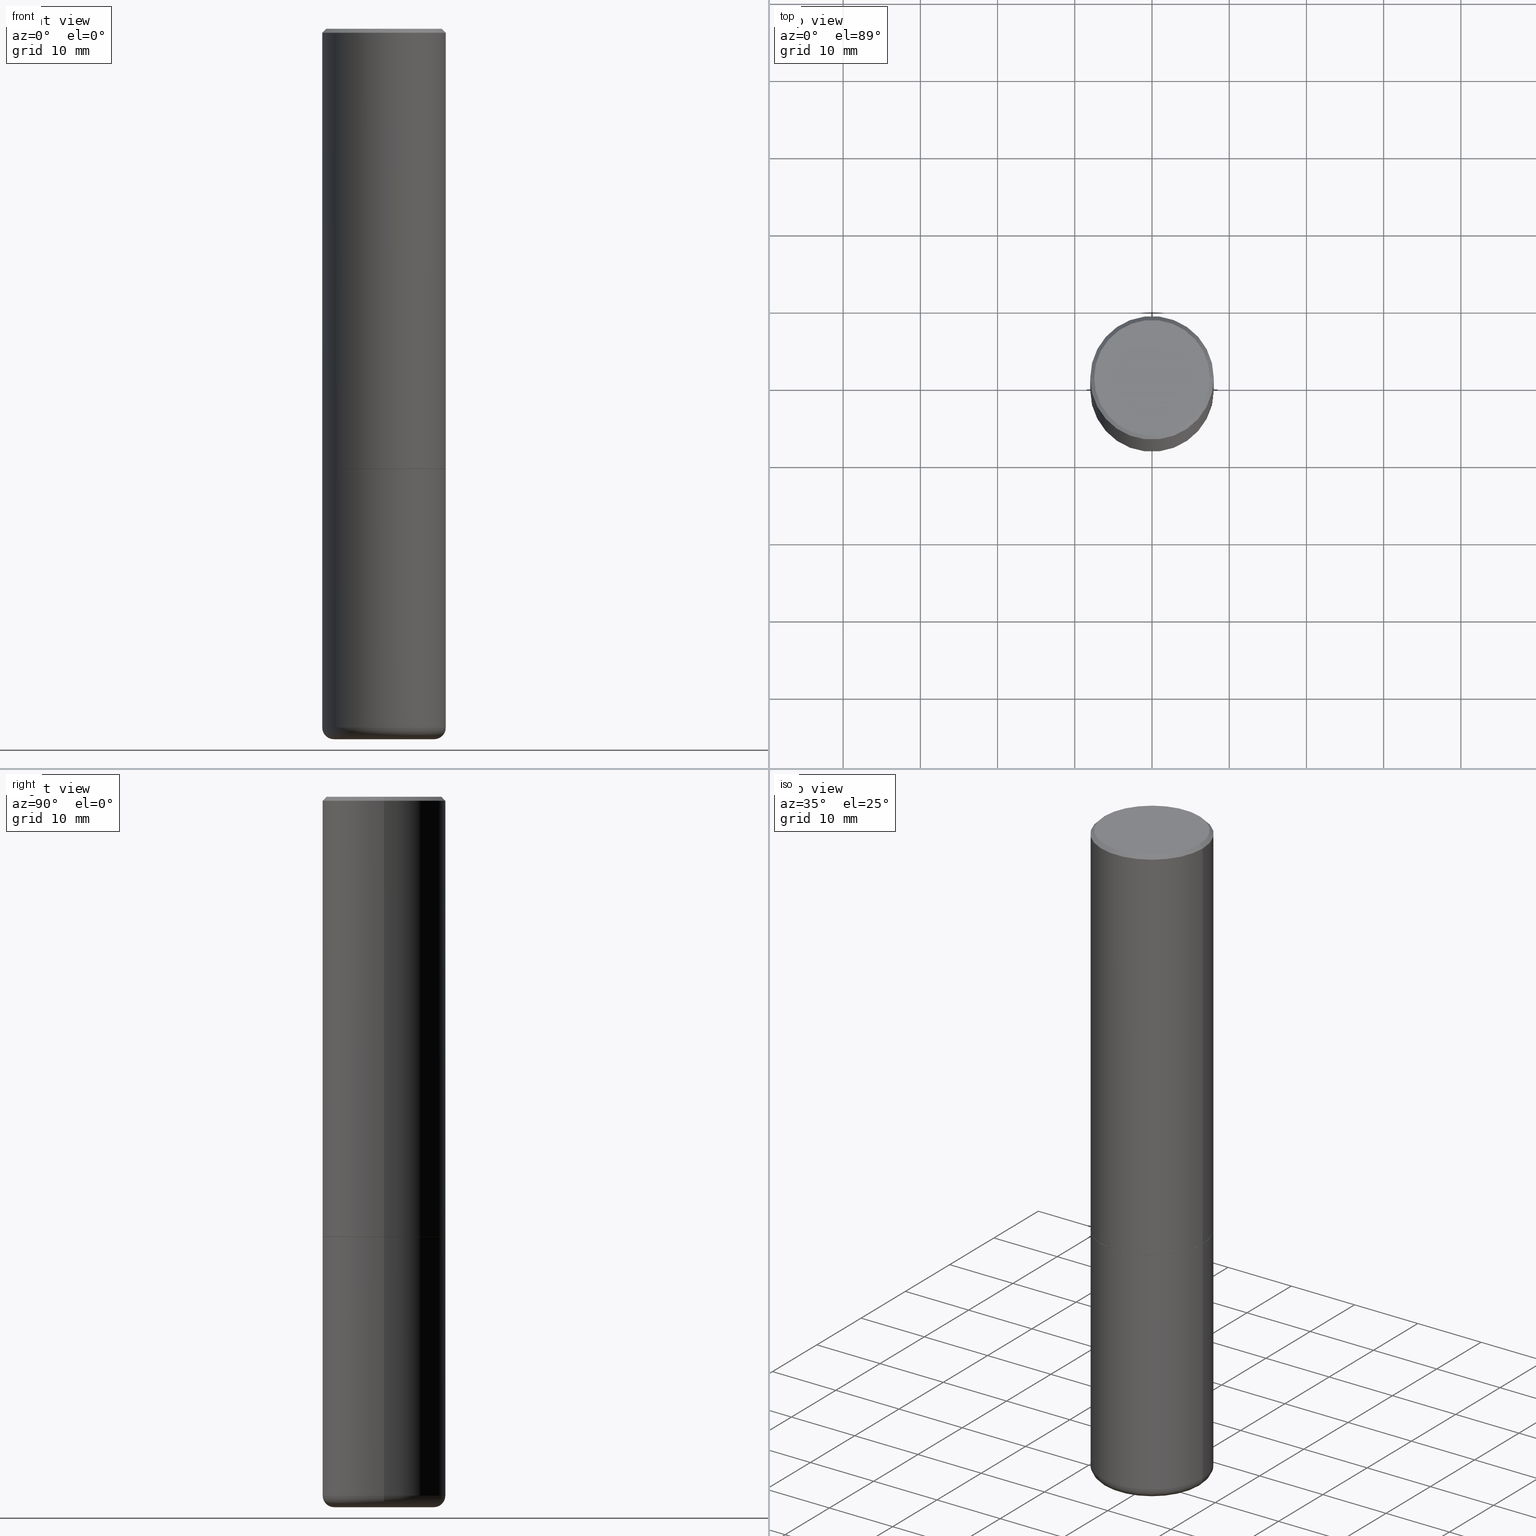
[diagram: canonical four-view strip — front | top / right | iso, engineering-drawing reading convention]
A machine part, canonical four-view strip (front | top / right | iso — engineering-drawing reading convention). The complete STEP part file that produces these views, byte-faithful:
ISO-10303-21;
HEADER;
FILE_DESCRIPTION (( 'STEP AP203' ),
    '1' );
FILE_NAME ('48017.STEP',
    '2024-03-06T19:45:35',
    ( '' ),
    ( '' ),
    'SwSTEP 2.0',
    'SolidWorks 2023',
    '' );
FILE_SCHEMA (( 'CONFIG_CONTROL_DESIGN' ));
ENDSEC;

DATA;
#1 = CARTESIAN_POINT ( 'NONE',  ( -0.3149500000000000077, 2.237854346276435590E-15, -1.549218606675782676E-29 ) ) ;
#2 = VECTOR ( 'NONE', #353, 39.37007874015748143 ) ;
#3 = AXIS2_PLACEMENT_3D ( 'NONE', #179, #329, #357 ) ;
#4 = DIRECTION ( 'NONE',  ( 1.000000000000000000, -6.982962677686267499E-15, 0.000000000000000000 ) ) ;
#5 = ORIENTED_EDGE ( 'NONE', *, *, #411, .T. ) ;
#6 = ORIENTED_EDGE ( 'NONE', *, *, #148, .F. ) ;
#7 = FACE_OUTER_BOUND ( 'NONE', #55, .T. ) ;
#8 = PERSON_AND_ORGANIZATION ( #178, #208 ) ;
#9 = EDGE_CURVE ( 'NONE', #184, #263, #37, .T. ) ;
#10 = CARTESIAN_POINT ( 'NONE',  ( 5.487632001079445967E-29, -7.834884124364017250E-15, -2.243999999999999773 ) ) ;
#11 = CARTESIAN_POINT ( 'NONE',  ( 5.487632001079445967E-29, -7.834884124364017250E-15, -2.243999999999999773 ) ) ;
#12 = CIRCLE ( 'NONE', #246, 0.3149500000000000077 ) ;
#13 = VECTOR ( 'NONE', #358, 39.37007874015748143 ) ;
#14 = CARTESIAN_POINT ( 'NONE',  ( -0.2949499999999999345, 2.094539655171995712E-15, 6.402768735149164613E-17 ) ) ;
#15 = PERSON_AND_ORGANIZATION ( #178, #208 ) ;
#16 = EDGE_CURVE ( 'NONE', #359, #370, #70, .T. ) ;
#17 = ORIENTED_EDGE ( 'NONE', *, *, #278, .F. ) ;
#18 = ORIENTED_EDGE ( 'NONE', *, *, #230, .F. ) ;
#19 = UNCERTAINTY_MEASURE_WITH_UNIT (LENGTH_MEASURE( 1.000000000000000082E-05 ), #314, 'distance_accuracy_value', 'NONE');
#20 = ORIENTED_EDGE ( 'NONE', *, *, #236, .F. ) ;
#21 = APPROVAL_PERSON_ORGANIZATION ( #244, #260, #308 ) ;
#22 = DIRECTION ( 'NONE',  ( 1.000000000000000000, -6.982962677686266711E-15, 0.000000000000000000 ) ) ;
#23 = DIRECTION ( 'NONE',  ( -2.445468806185136597E-29, 3.491481338843145583E-15, 1.000000000000000000 ) ) ;
#24 = PERSON_AND_ORGANIZATION ( #178, #208 ) ;
#25 = APPLICATION_CONTEXT ( 'configuration controlled 3d designs of mechanical parts and assemblies' ) ;
#26 = DESIGN_CONTEXT ( 'detailed design', #369, 'design' ) ;
#27 = ORIENTED_EDGE ( 'NONE', *, *, #379, .F. ) ;
#28 = PRODUCT_RELATED_PRODUCT_CATEGORY ( 'detail', '', ( #210 ) ) ;
#29 = CIRCLE ( 'NONE', #219, 0.3139500000000000068 ) ;
#30 = AXIS2_PLACEMENT_3D ( 'NONE', #338, #144, #316 ) ;
#31 = APPROVAL_ROLE ( '' ) ;
#32 = EDGE_CURVE ( 'NONE', #56, #387, #325, .T. ) ;
#33 = EDGE_CURVE ( 'NONE', #145, #263, #414, .T. ) ;
#34 = CARTESIAN_POINT ( 'NONE',  ( -0.2558500000000000218, -1.062187527272202748E-14, -3.562899999999999956 ) ) ;
#35 = DIRECTION ( 'NONE',  ( -2.445468806185136597E-29, 3.491481338843145583E-15, 1.000000000000000000 ) ) ;
#36 = AXIS2_PLACEMENT_3D ( 'NONE', #400, #215, #38 ) ;
#37 = LINE ( 'NONE', #193, #2 ) ;
#38 = DIRECTION ( 'NONE',  ( -1.000000000000000000, 6.982962677686266711E-15, 0.000000000000000000 ) ) ;
#39 = ORIENTED_EDGE ( 'NONE', *, *, #275, .T. ) ;
#40 = FACE_OUTER_BOUND ( 'NONE', #51, .T. ) ;
#41 = FACE_OUTER_BOUND ( 'NONE', #295, .T. ) ;
#42 = CARTESIAN_POINT ( 'NONE',  ( -0.3149500000000001743, 2.237854346276436774E-15, -1.549218606675783237E-29 ) ) ;
#43 = EDGE_LOOP ( 'NONE', ( #196, #242 ) ) ;
#44 = CARTESIAN_POINT ( 'NONE',  ( 0.3149500000000000077, -2.230543471175007450E-15, -0.02000000000000006981 ) ) ;
#45 = DIRECTION ( 'NONE',  ( -2.445468806185136597E-29, 3.491481338843145583E-15, 1.000000000000000000 ) ) ;
#46 = CIRCLE ( 'NONE', #248, 0.3139500000000000068 ) ;
#47 = CARTESIAN_POINT ( 'NONE',  ( -1.565777121502829671E-45, 2.235514755570671047E-31, 6.402768735150616610E-17 ) ) ;
#48 = EDGE_LOOP ( 'NONE', ( #299, #27, #168, #121 ) ) ;
#49 = EDGE_CURVE ( 'NONE', #106, #145, #261, .T. ) ;
#50 = CARTESIAN_POINT ( 'NONE',  ( -0.3139500000000000068, -5.598836751096959871E-15, -2.243999999999999773 ) ) ;
#51 = EDGE_LOOP ( 'NONE', ( #361, #292, #18, #214 ) ) ;
#52 = ORIENTED_EDGE ( 'NONE', *, *, #71, .F. ) ;
#53 = DIRECTION ( 'NONE',  ( 1.000000000000000000, -6.982962677686266711E-15, 0.000000000000000000 ) ) ;
#54 = CARTESIAN_POINT ( 'NONE',  ( 2.059624841783564063E-15, 0.2949499999999999345, -9.977985772160325786E-16 ) ) ;
#55 = EDGE_LOOP ( 'NONE', ( #347, #52 ) ) ;
#56 = VERTEX_POINT ( 'NONE', #349 ) ;
#57 = APPROVAL ( #416, 'UNSPECIFIED' ) ;
#58 = ORIENTED_EDGE ( 'NONE', *, *, #49, .F. ) ;
#59 = AXIS2_PLACEMENT_3D ( 'NONE', #77, #228, #351 ) ;
#60 = LOCAL_TIME ( 14, 45, 35.00000000000000000, #273 ) ;
#61 = AXIS2_PLACEMENT_3D ( 'NONE', #262, #390, #327 ) ;
#62 = DIRECTION ( 'NONE',  ( -1.000000000000000000, 6.982962677686265922E-15, -4.876176775795935793E-29 ) ) ;
#63 = CARTESIAN_POINT ( 'NONE',  ( 0.2949499999999999345, -2.127023677808860075E-15, 6.402768735152080933E-17 ) ) ;
#64 = ORIENTED_EDGE ( 'NONE', *, *, #236, .T. ) ;
#65 = DIRECTION ( 'NONE',  ( -1.000000000000000000, 6.982962677686265922E-15, -4.876176775795935793E-29 ) ) ;
#66 = CARTESIAN_POINT ( 'NONE',  ( -0.3149500000000000077, -1.020194451588780718E-14, -3.562899999999999956 ) ) ;
#67 = VECTOR ( 'NONE', #79, 39.37007874015748143 ) ;
#68 = CONICAL_SURFACE ( 'NONE', #36, 0.3149500000000000077, 0.7853981633974465026 ) ;
#69 = EDGE_LOOP ( 'NONE', ( #224, #212, #332, #172 ) ) ;
#70 = LINE ( 'NONE', #1, #337 ) ;
#71 = EDGE_CURVE ( 'NONE', #76, #182, #343, .T. ) ;
#72 = DIRECTION ( 'NONE',  ( -2.445468806185136597E-29, 3.491481338843145583E-15, 1.000000000000000000 ) ) ;
#73 = ADVANCED_FACE ( 'NONE', ( #41 ), #159, .T. ) ;
#74 = CARTESIAN_POINT ( 'NONE',  ( -0.3139500000000000068, -5.604135205445183851E-15, -2.243999999999999773 ) ) ;
#75 = CARTESIAN_POINT ( 'NONE',  ( 4.890937612370289799E-31, -6.982962677686315028E-17, -0.02000000000000006981 ) ) ;
#76 = VERTEX_POINT ( 'NONE', #321 ) ;
#77 = CARTESIAN_POINT ( 'NONE',  ( 0.000000000000000000, 0.000000000000000000, 0.000000000000000000 ) ) ;
#78 = EDGE_CURVE ( 'NONE', #76, #359, #138, .T. ) ;
#79 = DIRECTION ( 'NONE',  ( 0.7071067811865462405, -7.319954787623251312E-15, -0.7071067811865487940 ) ) ;
#80 = COORDINATED_UNIVERSAL_TIME_OFFSET ( 5, 0, .BEHIND. ) ;
#81 = EDGE_LOOP ( 'NONE', ( #115, #350 ) ) ;
#82 = EDGE_CURVE ( 'NONE', #286, #359, #12, .T. ) ;
#83 = VECTOR ( 'NONE', #392, 39.37007874015748143 ) ;
#84 = AXIS2_PLACEMENT_3D ( 'NONE', #47, #202, #288 ) ;
#85 = DIRECTION ( 'NONE',  ( 1.000000000000000000, -6.982962677686264344E-15, 0.000000000000000000 ) ) ;
#86 = ORIENTED_EDGE ( 'NONE', *, *, #16, .F. ) ;
#87 = DIRECTION ( 'NONE',  ( 2.438088387897960049E-29, -3.491481338843145188E-15, -1.000000000000000000 ) ) ;
#88 = CARTESIAN_POINT ( 'NONE',  ( -0.3149500000000000077, 2.129454468560426573E-15, -0.02000000000000006981 ) ) ;
#89 = ORIENTED_EDGE ( 'NONE', *, *, #78, .F. ) ;
#90 = PRODUCT_DEFINITION_SHAPE ( 'NONE', 'NONE',  #284 ) ;
#91 = CLOSED_SHELL ( 'NONE', ( #222, #221, #187, #291, #185, #128, #267, #265 ) ) ;
#92 = CARTESIAN_POINT ( 'NONE',  ( 5.487632001079445967E-29, -7.834884124364017250E-15, -2.243999999999999773 ) ) ;
#93 = CIRCLE ( 'NONE', #374, 0.3149500000000000077 ) ;
#94 = CC_DESIGN_PERSON_AND_ORGANIZATION_ASSIGNMENT ( #8, #109, ( #284 ) ) ;
#95 = DIRECTION ( 'NONE',  ( 1.000000000000000000, -6.982962677686263555E-15, 0.000000000000000000 ) ) ;
#96 = ORIENTED_EDGE ( 'NONE', *, *, #82, .T. ) ;
#97 = CARTESIAN_POINT ( 'NONE',  ( 0.3149500000000000077, -2.230543471175007450E-15, -0.02000000000000006981 ) ) ;
#98 = CONICAL_SURFACE ( 'NONE', #130, 0.3149500000000000077, 0.7853981633974465026 ) ;
#99 = APPLICATION_PROTOCOL_DEFINITION ( 'international standard', 'config_control_design', 1994, #369 ) ;
#100 = CC_DESIGN_PERSON_AND_ORGANIZATION_ASSIGNMENT ( #377, #341, ( #418 ) ) ;
#101 = AXIS2_PLACEMENT_3D ( 'NONE', #336, #303, #22 ) ;
#102 = EDGE_LOOP ( 'NONE', ( #318, #20 ) ) ;
#103 = VERTEX_POINT ( 'NONE', #63 ) ;
#104 = CARTESIAN_POINT ( 'NONE',  ( 5.485186532273261485E-29, -7.831392643025175821E-15, -2.242999999999999883 ) ) ;
#105 = DIRECTION ( 'NONE',  ( 1.000000000000000000, -6.982962677686267499E-15, 0.000000000000000000 ) ) ;
#106 = VERTEX_POINT ( 'NONE', #50 ) ;
#107 = CYLINDRICAL_SURFACE ( 'NONE', #59, 0.3149500000000001743 ) ;
#108 = DIRECTION ( 'NONE',  ( 1.000000000000000000, -6.982962677686266711E-15, 0.000000000000000000 ) ) ;
#109 = PERSON_AND_ORGANIZATION_ROLE ( 'creator' ) ;
#110 = DIRECTION ( 'NONE',  ( 1.000000000000000000, -6.982962677686269866E-15, 0.000000000000000000 ) ) ;
#111 = LINE ( 'NONE', #142, #83 ) ;
#112 = FACE_OUTER_BOUND ( 'NONE', #365, .T. ) ;
#113 = FACE_OUTER_BOUND ( 'NONE', #81, .T. ) ;
#114 = CIRCLE ( 'NONE', #240, 0.3149500000000000077 ) ;
#115 = ORIENTED_EDGE ( 'NONE', *, *, #379, .T. ) ;
#116 = VECTOR ( 'NONE', #201, 39.37007874015748143 ) ;
#117 = VERTEX_POINT ( 'NONE', #294 ) ;
#118 = CARTESIAN_POINT ( 'NONE',  ( 8.712960809557023143E-29, -1.243979886216424317E-14, -3.562899999999999956 ) ) ;
#119 = EDGE_CURVE ( 'NONE', #103, #335, #204, .T. ) ;
#120 = DATE_AND_TIME ( #245, #60 ) ;
#121 = ORIENTED_EDGE ( 'NONE', *, *, #280, .T. ) ;
#122 = CIRCLE ( 'NONE', #403, 0.3149500000000002853 ) ;
#123 = PERSON_AND_ORGANIZATION_ROLE ( 'creator' ) ;
#124 = CYLINDRICAL_SURFACE ( 'NONE', #153, 0.3149500000000001743 ) ;
#125 = FACE_OUTER_BOUND ( 'NONE', #43, .T. ) ;
#126 = DATE_AND_TIME ( #412, #389 ) ;
#127 = DIRECTION ( 'NONE',  ( 1.000000000000000000, -6.982962677686266711E-15, 4.876176775795936353E-29 ) ) ;
#128 = ADVANCED_FACE ( 'NONE', ( #137 ), #348, .T. ) ;
#129 = AXIS2_PLACEMENT_3D ( 'NONE', #92, #334, #340 ) ;
#130 = AXIS2_PLACEMENT_3D ( 'NONE', #75, #231, #354 ) ;
#131 = DIRECTION ( 'NONE',  ( -2.445468806185136877E-29, 3.491481338843145188E-15, 1.000000000000000000 ) ) ;
#132 = CARTESIAN_POINT ( 'NONE',  ( -0.3149500000000002853, -1.712756788624580222E-15, -2.242999999999999883 ) ) ;
#133 = EDGE_CURVE ( 'NONE', #387, #145, #122, .T. ) ;
#134 = EDGE_LOOP ( 'NONE', ( #96, #396, #17, #147 ) ) ;
#135 = DIRECTION ( 'NONE',  ( -2.445468806185136597E-29, 3.491481338843145583E-15, 1.000000000000000000 ) ) ;
#136 = ORIENTED_EDGE ( 'NONE', *, *, #71, .T. ) ;
#137 = FACE_OUTER_BOUND ( 'NONE', #322, .T. ) ;
#138 = CIRCLE ( 'NONE', #373, 0.05909999999999999282 ) ;
#139 = CARTESIAN_POINT ( 'NONE',  ( 0.3149500000000002853, -1.003067673836246727E-14, -2.242999999999999883 ) ) ;
#140 = CIRCLE ( 'NONE', #395, 0.3149500000000000077 ) ;
#141 =( NAMED_UNIT ( * ) SI_UNIT ( $, .STERADIAN. ) SOLID_ANGLE_UNIT ( ) );
#142 = CARTESIAN_POINT ( 'NONE',  ( 0.3149500000000001743, -2.199284095337290660E-15, 1.535751875536930690E-29 ) ) ;
#143 = EDGE_CURVE ( 'NONE', #370, #117, #258, .T. ) ;
#144 = DIRECTION ( 'NONE',  ( 0.000000000000000000, 0.000000000000000000, 1.000000000000000000 ) ) ;
#145 = VERTEX_POINT ( 'NONE', #132 ) ;
#146 = DATE_AND_TIME ( #249, #408 ) ;
#147 = ORIENTED_EDGE ( 'NONE', *, *, #181, .F. ) ;
#148 = EDGE_CURVE ( 'NONE', #182, #286, #344, .T. ) ;
#149 = DIRECTION ( 'NONE',  ( -2.445468806185136597E-29, 3.491481338843145583E-15, 1.000000000000000000 ) ) ;
#150 = PERSON_AND_ORGANIZATION_ROLE ( 'classification_officer' ) ;
#151 = EDGE_LOOP ( 'NONE', ( #161, #227, #5, #355 ) ) ;
#152 = APPROVAL_STATUS ( 'not_yet_approved' ) ;
#153 = AXIS2_PLACEMENT_3D ( 'NONE', #380, #407, #289 ) ;
#154 = CC_DESIGN_SECURITY_CLASSIFICATION ( #402, ( #418 ) ) ;
#155 = CIRCLE ( 'NONE', #3, 0.2949499999999999345 ) ;
#156 = SECURITY_CLASSIFICATION_LEVEL ( 'unclassified' ) ;
#157 = CARTESIAN_POINT ( 'NONE',  ( 8.857488016002564476E-29, -1.264614540928987199E-14, -3.621999999999999886 ) ) ;
#158 = MECHANICAL_CONTEXT ( 'NONE', #25, 'mechanical' ) ;
#159 = TOROIDAL_SURFACE ( 'NONE', #218, 0.2558500000000000218, 0.05909999999999995812 ) ;
#160 = DIRECTION ( 'NONE',  ( -2.445468806185136597E-29, 3.491481338843145583E-15, 1.000000000000000000 ) ) ;
#161 = ORIENTED_EDGE ( 'NONE', *, *, #33, .F. ) ;
#162 = EDGE_CURVE ( 'NONE', #359, #286, #140, .T. ) ;
#163 = DIRECTION ( 'NONE',  ( 7.105427357601001859E-15, 1.000000000000000000, -3.491481338843145583E-15 ) ) ;
#164 = APPROVAL_PERSON_ORGANIZATION ( #250, #277, #31 ) ;
#165 = DIRECTION ( 'NONE',  ( -2.445468806185136597E-29, 3.491481338843145583E-15, 1.000000000000000000 ) ) ;
#166 = AXIS2_PLACEMENT_3D ( 'NONE', #198, #324, #95 ) ;
#167 = AXIS2_PLACEMENT_3D ( 'NONE', #233, #268, #108 ) ;
#168 = ORIENTED_EDGE ( 'NONE', *, *, #9, .T. ) ;
#169 = APPROVAL_DATE_TIME ( #126, #57 ) ;
#170 = DIRECTION ( 'NONE',  ( -2.445468806185136597E-29, 3.491481338843145583E-15, 1.000000000000000000 ) ) ;
#171 = COORDINATED_UNIVERSAL_TIME_OFFSET ( 5, 0, .BEHIND. ) ;
#172 = ORIENTED_EDGE ( 'NONE', *, *, #9, .F. ) ;
#173 = PLANE ( 'NONE',  #312 ) ;
#174 = ORIENTED_EDGE ( 'NONE', *, *, #162, .T. ) ;
#175 = FACE_OUTER_BOUND ( 'NONE', #151, .T. ) ;
#176 = AXIS2_PLACEMENT_3D ( 'NONE', #10, #165, #296 ) ;
#177 = ORIENTED_EDGE ( 'NONE', *, *, #181, .T. ) ;
#178 = PERSON ( 'UNSPECIFIED', 'UNSPECIFIED', 'UNSPECIFIED', ('UNSPECIFIED'), ('UNSPECIFIED'), ('UNSPECIFIED') ) ;
#179 = CARTESIAN_POINT ( 'NONE',  ( -1.565777121502829671E-45, 2.235514755570671047E-31, 6.402768735150616610E-17 ) ) ;
#180 = DIRECTION ( 'NONE',  ( -2.445468806185136597E-29, 3.491481338843145583E-15, 1.000000000000000000 ) ) ;
#181 = EDGE_CURVE ( 'NONE', #286, #117, #235, .T. ) ;
#182 = VERTEX_POINT ( 'NONE', #385 ) ;
#183 = FACE_OUTER_BOUND ( 'NONE', #48, .T. ) ;
#184 = VERTEX_POINT ( 'NONE', #14 ) ;
#185 = ADVANCED_FACE ( 'NONE', ( #175 ), #107, .T. ) ;
#186 = ORIENTED_EDGE ( 'NONE', *, *, #32, .T. ) ;
#187 = ADVANCED_FACE ( 'NONE', ( #328 ), #98, .T. ) ;
#188 = CC_DESIGN_APPROVAL ( #57, ( #284 ) ) ;
#189 = AXIS2_PLACEMENT_3D ( 'NONE', #266, #304, #239 ) ;
#190 = DIRECTION ( 'NONE',  ( 2.438088387897960049E-29, -3.491481338843145188E-15, -1.000000000000000000 ) ) ;
#191 = CARTESIAN_POINT ( 'NONE',  ( 5.485186532273261485E-29, -7.831392643025175821E-15, -2.242999999999999883 ) ) ;
#192 = CC_DESIGN_DATE_AND_TIME_ASSIGNMENT ( #120, #399, ( #402 ) ) ;
#193 = CARTESIAN_POINT ( 'NONE',  ( -0.3149500000000000077, 2.129454468560426573E-15, -0.02000000000000006981 ) ) ;
#194 = AXIS2_PLACEMENT_3D ( 'NONE', #54, #87, #305 ) ;
#195 = CARTESIAN_POINT ( 'NONE',  ( 8.712960809557023143E-29, -1.243979886216424317E-14, -3.562899999999999956 ) ) ;
#196 = ORIENTED_EDGE ( 'NONE', *, *, #278, .T. ) ;
#197 = PERSON_AND_ORGANIZATION ( #178, #208 ) ;
#198 = CARTESIAN_POINT ( 'NONE',  ( 8.857488016002564476E-29, -1.264614540928987199E-14, -3.621999999999999886 ) ) ;
#199 = PERSON_AND_ORGANIZATION_ROLE ( 'design_owner' ) ;
#200 = CARTESIAN_POINT ( 'NONE',  ( 8.712960809557023143E-29, -1.243979886216424317E-14, -3.562899999999999956 ) ) ;
#201 = DIRECTION ( 'NONE',  ( -0.7071067811866199593, 7.493145998870616062E-15, 0.7071067811864750752 ) ) ;
#202 = DIRECTION ( 'NONE',  ( -2.445468806185136597E-29, 3.491481338843145583E-15, 1.000000000000000000 ) ) ;
#203 = APPROVAL_ROLE ( '' ) ;
#204 = LINE ( 'NONE', #44, #67 ) ;
#205 = FACE_OUTER_BOUND ( 'NONE', #302, .T. ) ;
#206 = EDGE_CURVE ( 'NONE', #103, #184, #287, .T. ) ;
#207 = ADVANCED_FACE ( 'NONE', ( #7 ), #173, .T. ) ;
#208 = ORGANIZATION ( 'UNSPECIFIED', 'UNSPECIFIED', '' ) ;
#209 = PLANE ( 'NONE',  #194 ) ;
#210 = PRODUCT ( '48017', '48017', '', ( #158 ) ) ;
#211 = FACE_OUTER_BOUND ( 'NONE', #102, .T. ) ;
#212 = ORIENTED_EDGE ( 'NONE', *, *, #119, .T. ) ;
#213 = PLANE ( 'NONE',  #129 ) ;
#214 = ORIENTED_EDGE ( 'NONE', *, *, #411, .F. ) ;
#215 = DIRECTION ( 'NONE',  ( 2.445468806185136597E-29, -3.491481338843145583E-15, -1.000000000000000000 ) ) ;
#216 = COORDINATED_UNIVERSAL_TIME_OFFSET ( 5, 0, .BEHIND. ) ;
#217 = LOCAL_TIME ( 14, 45, 35.00000000000000000, #216 ) ;
#218 = AXIS2_PLACEMENT_3D ( 'NONE', #200, #45, #220 ) ;
#219 = AXIS2_PLACEMENT_3D ( 'NONE', #371, #180, #363 ) ;
#220 = DIRECTION ( 'NONE',  ( 1.000000000000000000, -6.982962677686269866E-15, 4.883557194083113462E-29 ) ) ;
#221 = ADVANCED_FACE ( 'NONE', ( #40 ), #124, .T. ) ;
#222 = ADVANCED_FACE ( 'NONE', ( #205 ), #320, .T. ) ;
#223 = ORIENTED_EDGE ( 'NONE', *, *, #148, .T. ) ;
#224 = ORIENTED_EDGE ( 'NONE', *, *, #206, .F. ) ;
#225 = CLOSED_SHELL ( 'NONE', ( #323, #283, #293, #366, #73, #207 ) ) ;
#226 = CIRCLE ( 'NONE', #342, 0.2558500000000000218 ) ;
#227 = ORIENTED_EDGE ( 'NONE', *, *, #315, .T. ) ;
#228 = DIRECTION ( 'NONE',  ( -2.445468806185136597E-29, 3.491481338843145583E-15, 1.000000000000000000 ) ) ;
#229 = DIRECTION ( 'NONE',  ( 0.7071067811866199593, -2.468850131083015945E-15, 0.7071067811864750752 ) ) ;
#230 = EDGE_CURVE ( 'NONE', #335, #263, #93, .T. ) ;
#231 = DIRECTION ( 'NONE',  ( 2.445468806185136597E-29, -3.491481338843145583E-15, -1.000000000000000000 ) ) ;
#232 = DIRECTION ( 'NONE',  ( 2.438088387897960049E-29, -3.491481338843145188E-15, -1.000000000000000000 ) ) ;
#233 = CARTESIAN_POINT ( 'NONE',  ( 5.487632001079445967E-29, -7.834884124364017250E-15, -2.243999999999999773 ) ) ;
#234 = CARTESIAN_POINT ( 'NONE',  ( -0.3149500000000000077, -7.899487146987694225E-15, -2.243999999999999773 ) ) ;
#235 = LINE ( 'NONE', #264, #13 ) ;
#236 = EDGE_CURVE ( 'NONE', #106, #56, #29, .T. ) ;
#237 = CARTESIAN_POINT ( 'NONE',  ( 5.487632001079445967E-29, -7.834884124364017250E-15, -2.243999999999999773 ) ) ;
#238 = CC_DESIGN_APPROVAL ( #277, ( #418 ) ) ;
#239 = DIRECTION ( 'NONE',  ( 1.000000000000000000, -6.982962677686266711E-15, 4.876176775795936353E-29 ) ) ;
#240 = AXIS2_PLACEMENT_3D ( 'NONE', #307, #149, #272 ) ;
#241 = ORIENTED_EDGE ( 'NONE', *, *, #133, .F. ) ;
#242 = ORIENTED_EDGE ( 'NONE', *, *, #143, .T. ) ;
#243 = DIRECTION ( 'NONE',  ( -2.445468806185136597E-29, 3.491481338843145583E-15, 1.000000000000000000 ) ) ;
#244 = PERSON_AND_ORGANIZATION ( #178, #208 ) ;
#245 = CALENDAR_DATE ( 2024, 6, 3 ) ;
#246 = AXIS2_PLACEMENT_3D ( 'NONE', #195, #255, #345 ) ;
#247 = EDGE_LOOP ( 'NONE', ( #346, #281, #415, #6 ) ) ;
#248 = AXIS2_PLACEMENT_3D ( 'NONE', #237, #23, #85 ) ;
#249 = CALENDAR_DATE ( 2024, 6, 3 ) ;
#250 = PERSON_AND_ORGANIZATION ( #178, #208 ) ;
#251 = CALENDAR_DATE ( 2024, 6, 3 ) ;
#252 = CALENDAR_DATE ( 2024, 6, 3 ) ;
#253 = CYLINDRICAL_SURFACE ( 'NONE', #313, 0.3149500000000000077 ) ;
#254 = CARTESIAN_POINT ( 'NONE',  ( 8.857488016002564476E-29, -1.264614540928987199E-14, -3.621999999999999886 ) ) ;
#255 = DIRECTION ( 'NONE',  ( -2.445468806185136597E-29, 3.491481338843145583E-15, 1.000000000000000000 ) ) ;
#256 = DIRECTION ( 'NONE',  ( -2.445468806185136877E-29, 3.491481338843145188E-15, 1.000000000000000000 ) ) ;
#257 = ORIENTED_EDGE ( 'NONE', *, *, #315, .F. ) ;
#258 = CIRCLE ( 'NONE', #167, 0.3149500000000000077 ) ;
#259 = LOCAL_TIME ( 14, 45, 35.00000000000000000, #80 ) ;
#260 = APPROVAL ( #310, 'UNSPECIFIED' ) ;
#261 = LINE ( 'NONE', #74, #116 ) ;
#262 = CARTESIAN_POINT ( 'NONE',  ( 0.2558500000000000218, -1.422638986325027382E-14, -3.562899999999999956 ) ) ;
#263 = VERTEX_POINT ( 'NONE', #88 ) ;
#264 = CARTESIAN_POINT ( 'NONE',  ( 0.3149500000000000077, -2.199284095337289871E-15, 1.535751875536930130E-29 ) ) ;
#265 = ADVANCED_FACE ( 'NONE', ( #113 ), #209, .F. ) ;
#266 = CARTESIAN_POINT ( 'NONE',  ( 0.000000000000000000, 0.000000000000000000, 0.000000000000000000 ) ) ;
#267 = ADVANCED_FACE ( 'NONE', ( #211 ), #213, .F. ) ;
#268 = DIRECTION ( 'NONE',  ( -2.445468806185136597E-29, 3.491481338843145583E-15, 1.000000000000000000 ) ) ;
#269 = CIRCLE ( 'NONE', #404, 0.3149500000000002853 ) ;
#270 = ADVANCED_BREP_SHAPE_REPRESENTATION ( '48017', ( #290, #300, #30 ), #279 ) ;
#271 = FACE_OUTER_BOUND ( 'NONE', #247, .T. ) ;
#272 = DIRECTION ( 'NONE',  ( 1.000000000000000000, -6.982962677686266711E-15, 0.000000000000000000 ) ) ;
#273 = COORDINATED_UNIVERSAL_TIME_OFFSET ( 5, 0, .BEHIND. ) ;
#274 = APPLICATION_PROTOCOL_DEFINITION ( 'international standard', 'config_control_design', 1994, #25 ) ;
#275 = EDGE_CURVE ( 'NONE', #56, #106, #46, .T. ) ;
#276 = SHAPE_DEFINITION_REPRESENTATION ( #90, #270 ) ;
#277 = APPROVAL ( #152, 'UNSPECIFIED' ) ;
#278 = EDGE_CURVE ( 'NONE', #117, #370, #384, .T. ) ;
#279 =( GEOMETRIC_REPRESENTATION_CONTEXT ( 3 ) GLOBAL_UNCERTAINTY_ASSIGNED_CONTEXT ( ( #19 ) ) GLOBAL_UNIT_ASSIGNED_CONTEXT ( ( #314, #285, #141 ) ) REPRESENTATION_CONTEXT ( 'NONE', 'WORKASPACE' ) );
#280 = EDGE_CURVE ( 'NONE', #263, #335, #114, .T. ) ;
#281 = ORIENTED_EDGE ( 'NONE', *, *, #78, .T. ) ;
#282 = CARTESIAN_POINT ( 'NONE',  ( 0.3139500000000000068, -1.002718525702362111E-14, -2.243999999999999773 ) ) ;
#283 = ADVANCED_FACE ( 'NONE', ( #271 ), #360, .T. ) ;
#284 = PRODUCT_DEFINITION ( 'UNKNOWN', '', #418, #26 ) ;
#285 =( NAMED_UNIT ( * ) PLANE_ANGLE_UNIT ( ) SI_UNIT ( $, .RADIAN. ) );
#286 = VERTEX_POINT ( 'NONE', #397 ) ;
#287 = CIRCLE ( 'NONE', #84, 0.2949499999999999345 ) ;
#288 = DIRECTION ( 'NONE',  ( 1.000000000000000000, -6.982962677686267499E-15, 4.876696176320539145E-29 ) ) ;
#289 = DIRECTION ( 'NONE',  ( 1.000000000000000000, -6.982962677686265922E-15, 4.876176775795935232E-29 ) ) ;
#290 = MANIFOLD_SOLID_BREP ( 'Body-Move/Copy2[1]', #225 ) ;
#291 = ADVANCED_FACE ( 'NONE', ( #183 ), #68, .T. ) ;
#292 = ORIENTED_EDGE ( 'NONE', *, *, #33, .T. ) ;
#293 = ADVANCED_FACE ( 'NONE', ( #125 ), #386, .F. ) ;
#294 = CARTESIAN_POINT ( 'NONE',  ( 0.3149500000000000077, -1.003416821970130712E-14, -2.243999999999999773 ) ) ;
#295 = EDGE_LOOP ( 'NONE', ( #89, #136, #223, #410 ) ) ;
#296 = DIRECTION ( 'NONE',  ( 1.000000000000000000, -6.982962677686264344E-15, 0.000000000000000000 ) ) ;
#297 = DIRECTION ( 'NONE',  ( 1.000000000000000000, -6.982962677686264344E-15, 0.000000000000000000 ) ) ;
#298 = AXIS2_PLACEMENT_3D ( 'NONE', #382, #232, #62 ) ;
#299 = ORIENTED_EDGE ( 'NONE', *, *, #119, .F. ) ;
#300 = MANIFOLD_SOLID_BREP ( 'Body-Move/Copy2[2]', #91 ) ;
#301 =( LENGTH_UNIT ( ) NAMED_UNIT ( * ) SI_UNIT ( $, .METRE. ) );
#302 = EDGE_LOOP ( 'NONE', ( #39, #388, #241, #383 ) ) ;
#303 = DIRECTION ( 'NONE',  ( -2.445468806185136597E-29, 3.491481338843145583E-15, 1.000000000000000000 ) ) ;
#304 = DIRECTION ( 'NONE',  ( -2.445468806185136597E-29, 3.491481338843145583E-15, 1.000000000000000000 ) ) ;
#305 = DIRECTION ( 'NONE',  ( -1.000000000000000000, 6.982962677686265922E-15, -4.876176775795935793E-29 ) ) ;
#306 = VECTOR ( 'NONE', #229, 39.37007874015748143 ) ;
#307 = CARTESIAN_POINT ( 'NONE',  ( 4.890937612370289799E-31, -6.982962677686315028E-17, -0.02000000000000006981 ) ) ;
#308 = APPROVAL_ROLE ( '' ) ;
#309 = DATE_AND_TIME ( #252, #259 ) ;
#310 = APPROVAL_STATUS ( 'not_yet_approved' ) ;
#311 = PERSON_AND_ORGANIZATION ( #178, #208 ) ;
#312 = AXIS2_PLACEMENT_3D ( 'NONE', #157, #190, #65 ) ;
#313 = AXIS2_PLACEMENT_3D ( 'NONE', #317, #35, #127 ) ;
#314 =( CONVERSION_BASED_UNIT ( 'INCH', #405 ) LENGTH_UNIT ( ) NAMED_UNIT ( #364 ) );
#315 = EDGE_CURVE ( 'NONE', #145, #387, #269, .T. ) ;
#316 = DIRECTION ( 'NONE',  ( 1.000000000000000000, 0.000000000000000000, 0.000000000000000000 ) ) ;
#317 = CARTESIAN_POINT ( 'NONE',  ( 0.000000000000000000, 0.000000000000000000, 0.000000000000000000 ) ) ;
#318 = ORIENTED_EDGE ( 'NONE', *, *, #275, .F. ) ;
#319 = VECTOR ( 'NONE', #131, 39.37007874015748143 ) ;
#320 = CONICAL_SURFACE ( 'NONE', #331, 0.3139500000000000068, 0.7853981633975507526 ) ;
#321 = CARTESIAN_POINT ( 'NONE',  ( -0.2558500000000000218, -1.051508316786773174E-14, -3.621999999999999886 ) ) ;
#322 = EDGE_LOOP ( 'NONE', ( #58, #64, #186, #257 ) ) ;
#323 = ADVANCED_FACE ( 'NONE', ( #409 ), #253, .T. ) ;
#324 = DIRECTION ( 'NONE',  ( -2.445468806185136597E-29, 3.491481338843145583E-15, 1.000000000000000000 ) ) ;
#325 = LINE ( 'NONE', #282, #306 ) ;
#326 = EDGE_CURVE ( 'NONE', #182, #76, #226, .T. ) ;
#327 = DIRECTION ( 'NONE',  ( 1.000000000000000000, -6.982962677686262766E-15, 0.000000000000000000 ) ) ;
#328 = FACE_OUTER_BOUND ( 'NONE', #69, .T. ) ;
#329 = DIRECTION ( 'NONE',  ( -2.445468806185136597E-29, 3.491481338843145583E-15, 1.000000000000000000 ) ) ;
#330 = AXIS2_PLACEMENT_3D ( 'NONE', #118, #243, #367 ) ;
#331 = AXIS2_PLACEMENT_3D ( 'NONE', #11, #391, #297 ) ;
#332 = ORIENTED_EDGE ( 'NONE', *, *, #230, .T. ) ;
#333 = CC_DESIGN_PERSON_AND_ORGANIZATION_ASSIGNMENT ( #24, #150, ( #402 ) ) ;
#334 = DIRECTION ( 'NONE',  ( -2.438088387897960049E-29, 3.491481338843145188E-15, 1.000000000000000000 ) ) ;
#335 = VERTEX_POINT ( 'NONE', #97 ) ;
#336 = CARTESIAN_POINT ( 'NONE',  ( 5.487632001079445967E-29, -7.834884124364017250E-15, -2.243999999999999773 ) ) ;
#337 = VECTOR ( 'NONE', #256, 39.37007874015748143 ) ;
#338 = CARTESIAN_POINT ( 'NONE',  ( 0.000000000000000000, 0.000000000000000000, 0.000000000000000000 ) ) ;
#339 = CC_DESIGN_PERSON_AND_ORGANIZATION_ASSIGNMENT ( #311, #123, ( #418 ) ) ;
#340 = DIRECTION ( 'NONE',  ( 1.000000000000000000, -6.982962677686265922E-15, 4.876176775795935793E-29 ) ) ;
#341 = PERSON_AND_ORGANIZATION_ROLE ( 'design_supplier' ) ;
#342 = AXIS2_PLACEMENT_3D ( 'NONE', #254, #160, #381 ) ;
#343 = CIRCLE ( 'NONE', #166, 0.2558500000000000218 ) ;
#344 = CIRCLE ( 'NONE', #61, 0.05909999999999999282 ) ;
#345 = DIRECTION ( 'NONE',  ( 1.000000000000000000, -6.982962677686269866E-15, 0.000000000000000000 ) ) ;
#346 = ORIENTED_EDGE ( 'NONE', *, *, #326, .T. ) ;
#347 = ORIENTED_EDGE ( 'NONE', *, *, #326, .F. ) ;
#348 = CONICAL_SURFACE ( 'NONE', #176, 0.3139500000000000068, 0.7853981633975507526 ) ;
#349 = CARTESIAN_POINT ( 'NONE',  ( 0.3139500000000000068, -1.002718525702362111E-14, -2.243999999999999773 ) ) ;
#350 = ORIENTED_EDGE ( 'NONE', *, *, #206, .T. ) ;
#351 = DIRECTION ( 'NONE',  ( 1.000000000000000000, -6.982962677686265922E-15, 4.876176775795935232E-29 ) ) ;
#352 = CARTESIAN_POINT ( 'NONE',  ( 4.890937612370289799E-31, -6.982962677686315028E-17, -0.02000000000000006981 ) ) ;
#353 = DIRECTION ( 'NONE',  ( -0.7071067811865462405, 2.468850131082243256E-15, -0.7071067811865487940 ) ) ;
#354 = DIRECTION ( 'NONE',  ( -1.000000000000000000, 6.982962677686266711E-15, 0.000000000000000000 ) ) ;
#355 = ORIENTED_EDGE ( 'NONE', *, *, #280, .F. ) ;
#356 = CARTESIAN_POINT ( 'NONE',  ( 8.712960809557023143E-29, -1.243979886216424317E-14, -3.562899999999999956 ) ) ;
#357 = DIRECTION ( 'NONE',  ( 1.000000000000000000, -6.982962677686267499E-15, 4.876696176320539145E-29 ) ) ;
#358 = DIRECTION ( 'NONE',  ( -2.445468806185136877E-29, 3.491481338843145188E-15, 1.000000000000000000 ) ) ;
#359 = VERTEX_POINT ( 'NONE', #66 ) ;
#360 = TOROIDAL_SURFACE ( 'NONE', #330, 0.2558500000000000218, 0.05909999999999995812 ) ;
#361 = ORIENTED_EDGE ( 'NONE', *, *, #133, .T. ) ;
#362 = APPROVAL_DATE_TIME ( #146, #260 ) ;
#363 = DIRECTION ( 'NONE',  ( 1.000000000000000000, -6.982962677686264344E-15, 0.000000000000000000 ) ) ;
#364 = DIMENSIONAL_EXPONENTS ( 1.000000000000000000, 0.000000000000000000, 0.000000000000000000, 0.000000000000000000, 0.000000000000000000, 0.000000000000000000, 0.000000000000000000 ) ;
#365 = EDGE_LOOP ( 'NONE', ( #86, #174, #177, #378 ) ) ;
#366 = ADVANCED_FACE ( 'NONE', ( #112 ), #393, .T. ) ;
#367 = DIRECTION ( 'NONE',  ( 1.000000000000000000, -6.982962677686269866E-15, 4.883557194083113462E-29 ) ) ;
#368 = DATE_AND_TIME ( #251, #217 ) ;
#369 = APPLICATION_CONTEXT ( 'configuration controlled 3d designs of mechanical parts and assemblies' ) ;
#370 = VERTEX_POINT ( 'NONE', #234 ) ;
#371 = CARTESIAN_POINT ( 'NONE',  ( 5.487632001079445967E-29, -7.834884124364017250E-15, -2.243999999999999773 ) ) ;
#372 = CC_DESIGN_APPROVAL ( #260, ( #402 ) ) ;
#373 = AXIS2_PLACEMENT_3D ( 'NONE', #34, #163, #413 ) ;
#374 = AXIS2_PLACEMENT_3D ( 'NONE', #352, #72, #53 ) ;
#375 = COORDINATED_UNIVERSAL_TIME_OFFSET ( 5, 0, .BEHIND. ) ;
#376 = CC_DESIGN_PERSON_AND_ORGANIZATION_ASSIGNMENT ( #15, #199, ( #210 ) ) ;
#377 = PERSON_AND_ORGANIZATION ( #178, #208 ) ;
#378 = ORIENTED_EDGE ( 'NONE', *, *, #143, .F. ) ;
#379 = EDGE_CURVE ( 'NONE', #184, #103, #155, .T. ) ;
#380 = CARTESIAN_POINT ( 'NONE',  ( 0.000000000000000000, 0.000000000000000000, 0.000000000000000000 ) ) ;
#381 = DIRECTION ( 'NONE',  ( 1.000000000000000000, -6.982962677686263555E-15, 0.000000000000000000 ) ) ;
#382 = CARTESIAN_POINT ( 'NONE',  ( 5.487632001079445967E-29, -7.834884124364017250E-15, -2.243999999999999773 ) ) ;
#383 = ORIENTED_EDGE ( 'NONE', *, *, #32, .F. ) ;
#384 = CIRCLE ( 'NONE', #101, 0.3149500000000000077 ) ;
#385 = CARTESIAN_POINT ( 'NONE',  ( 0.2558500000000000218, -1.443273641037590422E-14, -3.621999999999999886 ) ) ;
#386 = PLANE ( 'NONE',  #298 ) ;
#387 = VERTEX_POINT ( 'NONE', #139 ) ;
#388 = ORIENTED_EDGE ( 'NONE', *, *, #49, .T. ) ;
#389 = LOCAL_TIME ( 14, 45, 35.00000000000000000, #171 ) ;
#390 = DIRECTION ( 'NONE',  ( -6.982962677686266711E-15, -1.000000000000000000, 3.491481338843145583E-15 ) ) ;
#391 = DIRECTION ( 'NONE',  ( -2.445468806185136597E-29, 3.491481338843145583E-15, 1.000000000000000000 ) ) ;
#392 = DIRECTION ( 'NONE',  ( -2.445468806185136877E-29, 3.491481338843145188E-15, 1.000000000000000000 ) ) ;
#393 = CYLINDRICAL_SURFACE ( 'NONE', #189, 0.3149500000000000077 ) ;
#394 = APPROVAL_PERSON_ORGANIZATION ( #197, #57, #203 ) ;
#395 = AXIS2_PLACEMENT_3D ( 'NONE', #356, #170, #110 ) ;
#396 = ORIENTED_EDGE ( 'NONE', *, *, #16, .T. ) ;
#397 = CARTESIAN_POINT ( 'NONE',  ( 0.3149500000000000077, -1.463908295750153462E-14, -3.562899999999999956 ) ) ;
#398 = DATE_TIME_ROLE ( 'creation_date' ) ;
#399 = DATE_TIME_ROLE ( 'classification_date' ) ;
#400 = CARTESIAN_POINT ( 'NONE',  ( 4.890937612370289799E-31, -6.982962677686315028E-17, -0.02000000000000006981 ) ) ;
#401 = APPROVAL_DATE_TIME ( #368, #277 ) ;
#402 = SECURITY_CLASSIFICATION ( '', '', #156 ) ;
#403 = AXIS2_PLACEMENT_3D ( 'NONE', #104, #135, #4 ) ;
#404 = AXIS2_PLACEMENT_3D ( 'NONE', #191, #417, #105 ) ;
#405 = LENGTH_MEASURE_WITH_UNIT ( LENGTH_MEASURE( 0.02539999999999999897 ), #301 );
#406 = CC_DESIGN_DATE_AND_TIME_ASSIGNMENT ( #309, #398, ( #284 ) ) ;
#407 = DIRECTION ( 'NONE',  ( -2.445468806185136597E-29, 3.491481338843145583E-15, 1.000000000000000000 ) ) ;
#408 = LOCAL_TIME ( 14, 45, 35.00000000000000000, #375 ) ;
#409 = FACE_OUTER_BOUND ( 'NONE', #134, .T. ) ;
#410 = ORIENTED_EDGE ( 'NONE', *, *, #162, .F. ) ;
#411 = EDGE_CURVE ( 'NONE', #387, #335, #111, .T. ) ;
#412 = CALENDAR_DATE ( 2024, 6, 3 ) ;
#413 = DIRECTION ( 'NONE',  ( -1.000000000000000000, 7.105427357600993181E-15, 0.000000000000000000 ) ) ;
#414 = LINE ( 'NONE', #42, #319 ) ;
#415 = ORIENTED_EDGE ( 'NONE', *, *, #82, .F. ) ;
#416 = APPROVAL_STATUS ( 'not_yet_approved' ) ;
#417 = DIRECTION ( 'NONE',  ( -2.445468806185136597E-29, 3.491481338843145583E-15, 1.000000000000000000 ) ) ;
#418 = PRODUCT_DEFINITION_FORMATION_WITH_SPECIFIED_SOURCE ( 'ANY', '', #210, .NOT_KNOWN. ) ;
ENDSEC;
END-ISO-10303-21;
